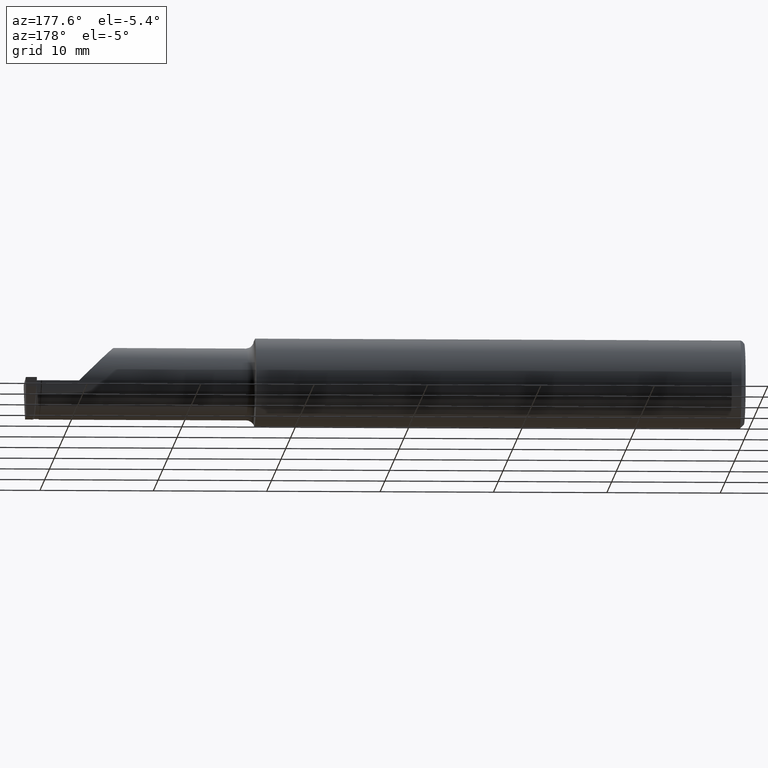
[diagram: clean part render]
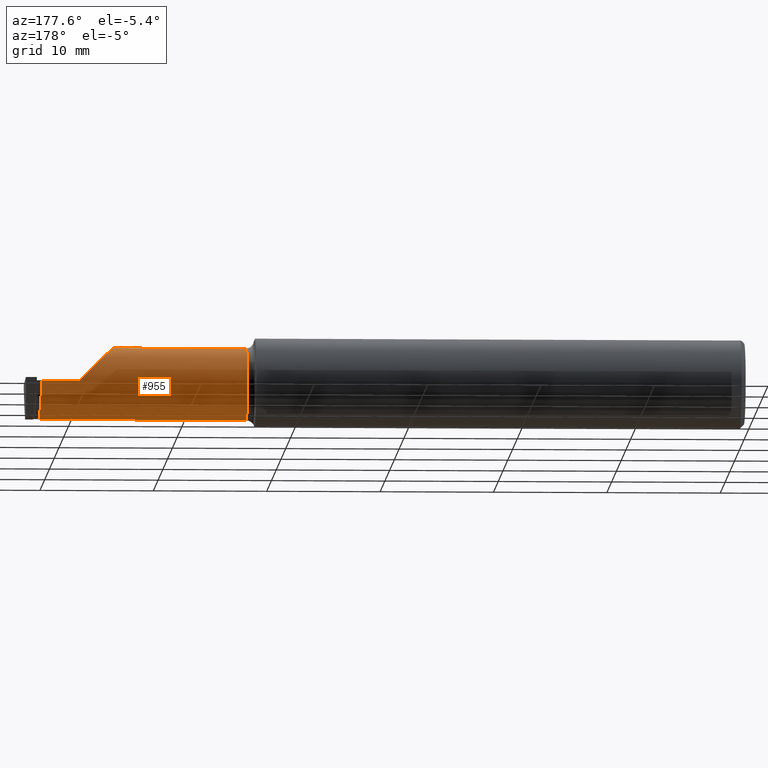
[diagram: same view with one face highlighted and labeled with its STEP entity id]
A machine part, auxiliary view. The second image highlights one B-rep face of the part: STEP entity #955.
In plain terms, the highlighted cylindrical surface (edge-blend (fillet) strip) has radius 3.175 mm, axis along (-1, -0, -0).
Its self-contained STEP definition (entity closure, byte-faithful):
#22 = CARTESIAN_POINT ( 'NONE',  ( 2.439500000000000668, 0.03590000000000006380, 7.121324356843854204E-18 ) ) ;
#27 = CARTESIAN_POINT ( 'NONE',  ( 2.444436834922086632, -0.08088281945162062447, -0.1249999999999949207 ) ) ;
#55 = AXIS2_PLACEMENT_3D ( 'NONE', #288, #539, #1056 ) ;
#62 = CARTESIAN_POINT ( 'NONE',  ( 2.310000000000000053, 0.03589999999999998748, 2.326828918379970872E-17 ) ) ;
#108 = CARTESIAN_POINT ( 'NONE',  ( 2.444257766626077633, -0.05670268150663042295, -0.1210058768752618474 ) ) ;
#109 = VERTEX_POINT ( 'NONE', #1018 ) ;
#111 = DIRECTION ( 'NONE',  ( 1.000000000000000000, 0.000000000000000000, 0.000000000000000000 ) ) ;
#119 = CARTESIAN_POINT ( 'NONE',  ( 1.699999999999999956, -0.08909999999999998477, 0.1250000000000000000 ) ) ;
#132 = CARTESIAN_POINT ( 'NONE',  ( 2.444147791115841795, -0.04875164862914172642, -0.1185892249351804817 ) ) ;
#177 = AXIS2_PLACEMENT_3D ( 'NONE', #461, #534, #703 ) ;
#189 = EDGE_CURVE ( 'NONE', #923, #888, #862, .T. ) ;
#194 = CARTESIAN_POINT ( 'NONE',  ( 2.442717838188013690, 0.005034119961512959623, -0.08264370188734956879 ) ) ;
#205 = CARTESIAN_POINT ( 'NONE',  ( 2.185000000000000941, -0.08909999999999998477, 0.1250000000000000000 ) ) ;
#207 = CARTESIAN_POINT ( 'NONE',  ( 2.440747162570274131, 0.03189735508455680824, -0.03242710871413986146 ) ) ;
#213 = CARTESIAN_POINT ( 'NONE',  ( 2.443786525276902655, -0.02650699970421378088, -0.1085120206740964044 ) ) ;
#215 = VECTOR ( 'NONE', #868, 39.37007874015748143 ) ;
#218 = FACE_OUTER_BOUND ( 'NONE', #846, .T. ) ;
#234 = VERTEX_POINT ( 'NONE', #22 ) ;
#241 = ORIENTED_EDGE ( 'NONE', *, *, #189, .T. ) ;
#256 =( BOUNDED_CURVE ( )  B_SPLINE_CURVE ( 3, ( #205, #962, #633, #885 ),
 .UNSPECIFIED., .F., .F. ) 
 B_SPLINE_CURVE_WITH_KNOTS ( ( 4, 4 ),
 ( 0.000000000000000000, 1.570796326794896558 ),
 .UNSPECIFIED. ) 
 CURVE ( )  GEOMETRIC_REPRESENTATION_ITEM ( )  RATIONAL_B_SPLINE_CURVE ( ( 1.000000000000000000, 0.8047378541243649375, 0.8047378541243649375, 1.000000000000000000 ) ) 
 REPRESENTATION_ITEM ( '' )  );
#278 = CARTESIAN_POINT ( 'NONE',  ( 2.441076701117118386, 0.02947894755971935607, -0.04037901199672798425 ) ) ;
#288 = CARTESIAN_POINT ( 'NONE',  ( 1.699999999999999956, -0.08909999999999998477, 0.000000000000000000 ) ) ;
#315 = ORIENTED_EDGE ( 'NONE', *, *, #594, .T. ) ;
#336 = VECTOR ( 'NONE', #111, 39.37007874015748143 ) ;
#369 = CYLINDRICAL_SURFACE ( 'NONE', #55, 0.1250000000000000000 ) ;
#372 = CARTESIAN_POINT ( 'NONE',  ( 2.444428611900506976, -0.08909999999992185282, -0.1250000000000000555 ) ) ;
#382 = LINE ( 'NONE', #119, #545 ) ;
#389 = ORIENTED_EDGE ( 'NONE', *, *, #859, .T. ) ;
#461 = CARTESIAN_POINT ( 'NONE',  ( 1.724999999999999867, -0.08909999999999998477, 0.000000000000000000 ) ) ;
#464 = CARTESIAN_POINT ( 'NONE',  ( 2.443195877277316796, -0.006474744135555979795, -0.09415031118328168191 ) ) ;
#496 = CARTESIAN_POINT ( 'NONE',  ( 1.724999999999999867, -0.08909999999999998477, 0.1250000000000000000 ) ) ;
#534 = DIRECTION ( 'NONE',  ( -1.000000000000000000, -0.000000000000000000, -0.000000000000000000 ) ) ;
#539 = DIRECTION ( 'NONE',  ( -1.000000000000000000, -0.000000000000000000, -0.000000000000000000 ) ) ;
#545 = VECTOR ( 'NONE', #616, 39.37007874015748143 ) ;
#568 = ORIENTED_EDGE ( 'NONE', *, *, #941, .T. ) ;
#594 = EDGE_CURVE ( 'NONE', #234, #923, #880, .T. ) ;
#604 = ORIENTED_EDGE ( 'NONE', *, *, #624, .F. ) ;
#611 = CARTESIAN_POINT ( 'NONE',  ( 2.443432735936789779, -0.01281923194865897467, -0.09936793618819571294 ) ) ;
#614 = CARTESIAN_POINT ( 'NONE',  ( 1.699999999999999956, 0.03590000000000001523, 9.797174393178832313E-17 ) ) ;
#616 = DIRECTION ( 'NONE',  ( -1.000000000000000000, -0.000000000000000000, -0.000000000000000000 ) ) ;
#617 = ORIENTED_EDGE ( 'NONE', *, *, #855, .F. ) ;
#621 = CARTESIAN_POINT ( 'NONE',  ( 2.439500000000000668, 0.03590000000000006380, 7.121324356843854204E-18 ) ) ;
#624 = EDGE_CURVE ( 'NONE', #109, #755, #382, .T. ) ;
#633 = CARTESIAN_POINT ( 'NONE',  ( 2.236776695296637474, 0.03590000000000000829, 0.07322330470336313457 ) ) ;
#697 = CARTESIAN_POINT ( 'NONE',  ( 2.441973878009436216, 0.01939704949769464198, -0.06261605425529394309 ) ) ;
#703 = DIRECTION ( 'NONE',  ( 0.000000000000000000, 0.000000000000000000, 1.000000000000000000 ) ) ;
#706 = CARTESIAN_POINT ( 'NONE',  ( 2.442475355473209042, 0.01027685637267981150, -0.07626677138630481856 ) ) ;
#715 = LINE ( 'NONE', #614, #336 ) ;
#723 = CARTESIAN_POINT ( 'NONE',  ( 2.440122559936418689, 0.03509086040010602620, -0.01638619876903570083 ) ) ;
#755 = VERTEX_POINT ( 'NONE', #496 ) ;
#781 = CARTESIAN_POINT ( 'NONE',  ( 2.441698186134095394, 0.02323143009701810965, -0.05543537883483174583 ) ) ;
#846 = EDGE_LOOP ( 'NONE', ( #315, #241, #617, #604, #389, #568 ) ) ;
#855 = EDGE_CURVE ( 'NONE', #755, #888, #1007, .T. ) ;
#859 = EDGE_CURVE ( 'NONE', #109, #997, #256, .T. ) ;
#862 = LINE ( 'NONE', #875, #215 ) ;
#868 = DIRECTION ( 'NONE',  ( -1.000000000000000000, -0.000000000000000000, -0.000000000000000000 ) ) ;
#875 = CARTESIAN_POINT ( 'NONE',  ( 1.699999999999999956, -0.08909999999999995701, -0.1250000000000000000 ) ) ;
#880 = B_SPLINE_CURVE_WITH_KNOTS ( 'NONE', 3,
 ( #621, #1048, #723, #207, #278, #781, #697, #706, #194, #464, #611, #213, #950, #132, #108, #881, #27, #372 ),
 .UNSPECIFIED., .F., .F.,
 ( 4, 2, 2, 2, 2, 2, 2, 2, 4 ),
 ( 0.000000000000000000, 0.0006227411658704137647, 0.001245482331740827529, 0.001868223497611241077, 0.002490964663481655059, 0.003113705829352067956, 0.003736446995222479986, 0.004359188161092893317, 0.004981929326963306648 ),
 .UNSPECIFIED. ) ;
#881 = CARTESIAN_POINT ( 'NONE',  ( 2.444412895850132994, -0.07276030822906991158, -0.1241975159040745735 ) ) ;
#885 = CARTESIAN_POINT ( 'NONE',  ( 2.310000000000000053, 0.03589999999999998748, 2.326828918379970872E-17 ) ) ;
#888 = VERTEX_POINT ( 'NONE', #956 ) ;
#923 = VERTEX_POINT ( 'NONE', #948 ) ;
#941 = EDGE_CURVE ( 'NONE', #997, #234, #715, .T. ) ;
#948 = CARTESIAN_POINT ( 'NONE',  ( 2.444428611900506976, -0.08909999999992185282, -0.1250000000000000555 ) ) ;
#950 = CARTESIAN_POINT ( 'NONE',  ( 2.443913530967688708, -0.03369782618951661091, -0.1123476429042731123 ) ) ;
#955 = ADVANCED_FACE ( 'NONE', ( #218 ), #369, .T. ) ;
#956 = CARTESIAN_POINT ( 'NONE',  ( 1.724999999999999867, -0.08909999999999995701, -0.1250000000000000000 ) ) ;
#962 = CARTESIAN_POINT ( 'NONE',  ( 2.185000000000000941, -0.01587669529663685714, 0.1250000000000000278 ) ) ;
#997 = VERTEX_POINT ( 'NONE', #62 ) ;
#1007 = CIRCLE ( 'NONE', #177, 0.1250000000000000000 ) ;
#1018 = CARTESIAN_POINT ( 'NONE',  ( 2.185000000000000941, -0.08909999999999998477, 0.1250000000000000000 ) ) ;
#1048 = CARTESIAN_POINT ( 'NONE',  ( 2.439820316791854182, 0.03589999999677379733, -0.008251322795549667979 ) ) ;
#1056 = DIRECTION ( 'NONE',  ( 0.000000000000000000, 0.000000000000000000, 1.000000000000000000 ) ) ;